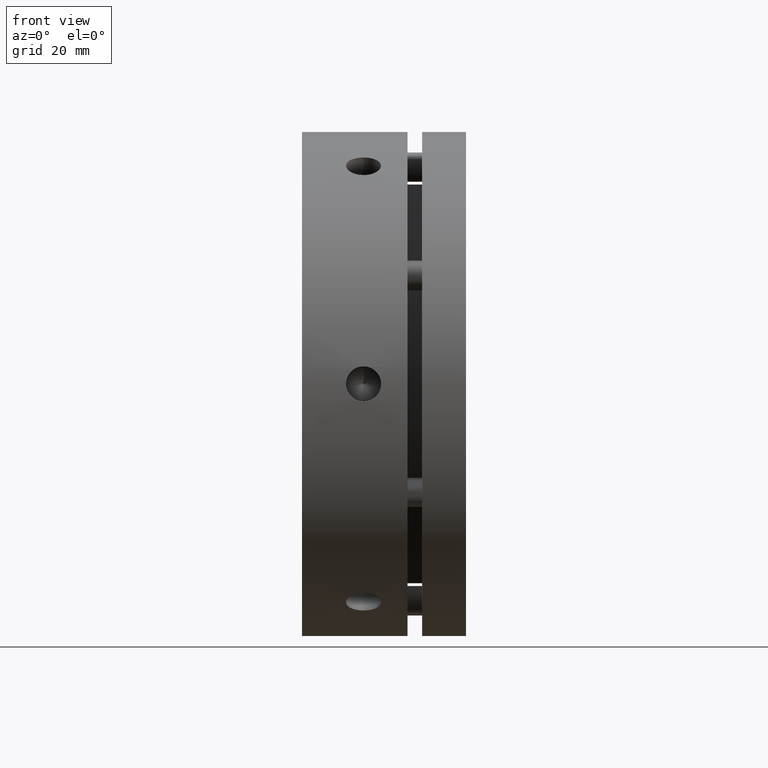
[diagram: clean part render]
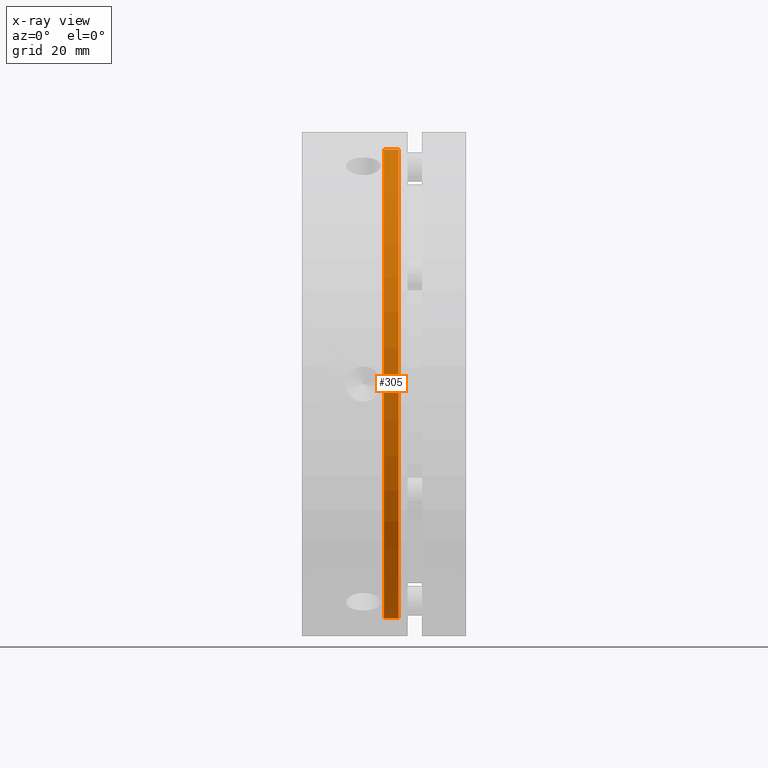
[diagram: x-ray — body ghosted, one internal face saturated and labeled with its STEP entity id]
A machine part, front view, then the same camera in x-ray: the body is ghosted and one INTERNAL B-rep face — a face not visible from any outside direction — is saturated and labeled: STEP entity #305.
In plain terms, the highlighted cylindrical surface (partial cylindrical patch) has radius 40 mm, axis along (-1, 0, 0).
Its self-contained STEP definition (entity closure, byte-faithful):
#136 = EDGE_LOOP ( 'NONE', ( #3689, #3690, #3691, #3692 ) ) ;
#305 = ADVANCED_FACE ( 'NONE', ( #4397 ), #4406, .F. ) ;
#533 = EDGE_CURVE ( 'NONE', #4242, #4243, #2059, .T. ) ;
#534 = EDGE_CURVE ( 'NONE', #4243, #4248, #2062, .T. ) ;
#535 = EDGE_CURVE ( 'NONE', #4248, #4249, #2065, .T. ) ;
#536 = EDGE_CURVE ( 'NONE', #4242, #4249, #2067, .T. ) ;
#782 = DIRECTION ( 'NONE',  ( 0.0000000000000000000, 0.0000000000000000000, 1.000000000000000000 ) ) ;
#784 = DIRECTION ( 'NONE',  ( -1.000000000000000000, 0.0000000000000000000, 0.0000000000000000000 ) ) ;
#786 = CARTESIAN_POINT ( 'NONE',  ( 15.25000000000000400, 0.0000000000000000000, 0.0000000000000000000 ) ) ;
#1674 = DIRECTION ( 'NONE',  ( -1.000000000000000000, 0.0000000000000000000, 0.0000000000000000000 ) ) ;
#1675 = CARTESIAN_POINT ( 'NONE',  ( 15.25000000000000400, 0.0000000000000000000, 40.00000000000000000 ) ) ;
#1676 = DIRECTION ( 'NONE',  ( -1.000000000000000000, 0.0000000000000000000, 0.0000000000000000000 ) ) ;
#1677 = CARTESIAN_POINT ( 'NONE',  ( 15.25000000000000400, 4.898587196589413000E-015, -40.00000000000000000 ) ) ;
#1678 = CARTESIAN_POINT ( 'NONE',  ( 16.50000000000000000, 0.0000000000000000000, 0.0000000000000000000 ) ) ;
#1679 = DIRECTION ( 'NONE',  ( 1.000000000000000000, -0.0000000000000000000, -0.0000000000000000000 ) ) ;
#1680 = DIRECTION ( 'NONE',  ( 0.0000000000000000000, 0.0000000000000000000, 1.000000000000000000 ) ) ;
#1681 = CARTESIAN_POINT ( 'NONE',  ( 14.00000000000000500, 0.0000000000000000000, 0.0000000000000000000 ) ) ;
#1682 = DIRECTION ( 'NONE',  ( -1.000000000000000000, 0.0000000000000000000, 0.0000000000000000000 ) ) ;
#1683 = DIRECTION ( 'NONE',  ( 0.0000000000000000000, 0.0000000000000000000, 1.000000000000000000 ) ) ;
#2059 = CIRCLE ( 'NONE', #4709, 40.00000000000000000 ) ;
#2062 = LINE ( 'NONE', #1677, #2066 ) ;
#2065 = CIRCLE ( 'NONE', #4710, 40.00000000000000000 ) ;
#2066 = VECTOR ( 'NONE', #1674, 1000.000000000000000 ) ;
#2067 = LINE ( 'NONE', #1675, #2069 ) ;
#2069 = VECTOR ( 'NONE', #1676, 1000.000000000000000 ) ;
#3130 = CARTESIAN_POINT ( 'NONE',  ( 16.50000000000000000, 0.0000000000000000000, 40.00000000000000000 ) ) ;
#3131 = CARTESIAN_POINT ( 'NONE',  ( 16.50000000000000000, 4.898587196589413000E-015, -40.00000000000000000 ) ) ;
#3136 = CARTESIAN_POINT ( 'NONE',  ( 14.00000000000000500, 4.898587196589413000E-015, -40.00000000000000000 ) ) ;
#3137 = CARTESIAN_POINT ( 'NONE',  ( 14.00000000000000500, 0.0000000000000000000, 40.00000000000000000 ) ) ;
#3689 = ORIENTED_EDGE ( 'NONE', *, *, #533, .T. ) ;
#3690 = ORIENTED_EDGE ( 'NONE', *, *, #534, .T. ) ;
#3691 = ORIENTED_EDGE ( 'NONE', *, *, #535, .T. ) ;
#3692 = ORIENTED_EDGE ( 'NONE', *, *, #536, .F. ) ;
#4242 = VERTEX_POINT ( 'NONE', #3130 ) ;
#4243 = VERTEX_POINT ( 'NONE', #3131 ) ;
#4248 = VERTEX_POINT ( 'NONE', #3136 ) ;
#4249 = VERTEX_POINT ( 'NONE', #3137 ) ;
#4397 = FACE_OUTER_BOUND ( 'NONE', #136, .T. ) ;
#4406 = CYLINDRICAL_SURFACE ( 'NONE', #4570, 40.00000000000000000 ) ;
#4570 = AXIS2_PLACEMENT_3D ( 'NONE', #786, #784, #782 ) ;
#4709 = AXIS2_PLACEMENT_3D ( 'NONE', #1678, #1679, #1680 ) ;
#4710 = AXIS2_PLACEMENT_3D ( 'NONE', #1681, #1682, #1683 ) ;